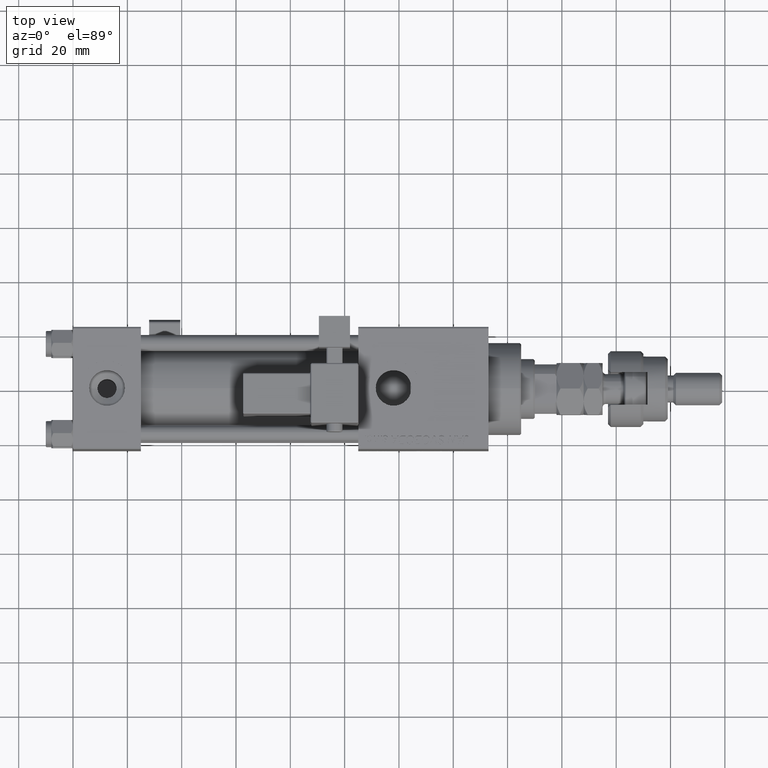
[diagram: clean part render]
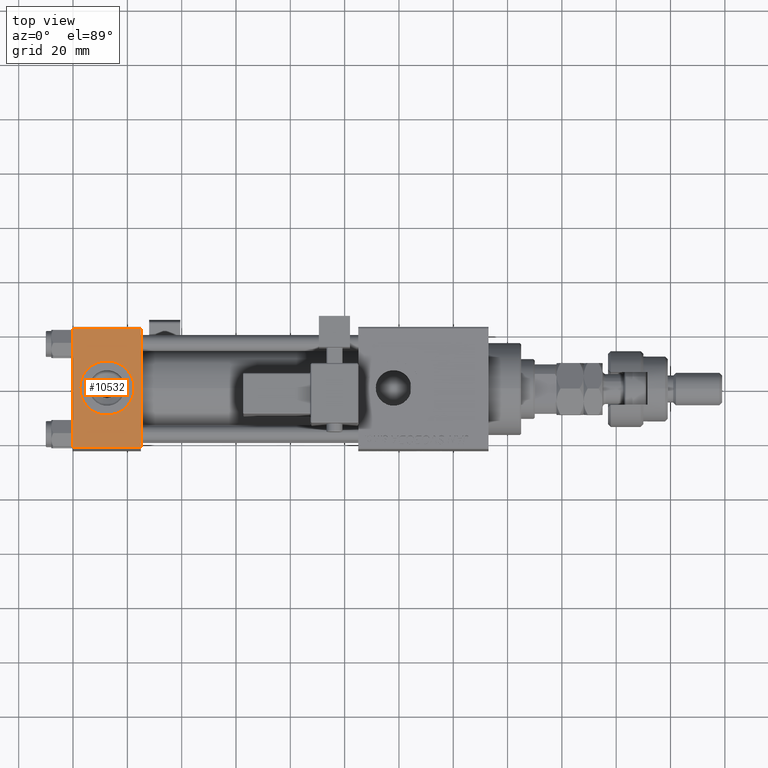
[diagram: same view with one face highlighted and labeled with its STEP entity id]
A machine part, top view. The second image highlights one B-rep face of the part: STEP entity #10532.
In plain terms, the highlighted planar face has unit normal (0, 0, -1).
Its self-contained STEP definition (entity closure, byte-faithful):
#235 = ORIENTED_EDGE ( 'NONE', *, *, #7508, .F. ) ;
#355 = VERTEX_POINT ( 'NONE', #46009 ) ;
#1140 = CARTESIAN_POINT ( 'NONE',  ( 0.000000000000000000, 22.50000000000000000, 22.50000000000000355 ) ) ;
#1927 = CARTESIAN_POINT ( 'NONE',  ( 0.000000000000000000, -21.99999999999997868, 22.50000000000000000 ) ) ;
#2071 = LINE ( 'NONE', #28501, #49501 ) ;
#2279 = DIRECTION ( 'NONE',  ( 0.000000000000000000, 0.000000000000000000, 1.000000000000000000 ) ) ;
#2912 = FACE_BOUND ( 'NONE', #56318, .T. ) ;
#3070 = AXIS2_PLACEMENT_3D ( 'NONE', #21724, #8092, #11597 ) ;
#5200 = LINE ( 'NONE', #22891, #26436 ) ;
#5809 = EDGE_CURVE ( 'NONE', #42469, #10529, #39207, .T. ) ;
#7209 = VECTOR ( 'NONE', #17699, 1000.000000000000000 ) ;
#7508 = EDGE_CURVE ( 'NONE', #355, #28321, #2071, .T. ) ;
#8092 = DIRECTION ( 'NONE',  ( 0.000000000000000000, 0.000000000000000000, 1.000000000000000000 ) ) ;
#9532 = ORIENTED_EDGE ( 'NONE', *, *, #55783, .F. ) ;
#10019 = DIRECTION ( 'NONE',  ( -1.000000000000000000, 0.000000000000000000, 0.000000000000000000 ) ) ;
#10529 = VERTEX_POINT ( 'NONE', #16818 ) ;
#10532 = ADVANCED_FACE ( 'NONE', ( #2912, #38620 ), #51962, .F. ) ;
#11597 = DIRECTION ( 'NONE',  ( 1.000000000000000000, 0.000000000000000000, 0.000000000000000000 ) ) ;
#11685 = VERTEX_POINT ( 'NONE', #33624 ) ;
#13811 = LINE ( 'NONE', #17869, #29957 ) ;
#16818 = CARTESIAN_POINT ( 'NONE',  ( 22.50000000000000000, -1.734723475976807094E-15, 22.50000000000000000 ) ) ;
#17530 = EDGE_CURVE ( 'NONE', #57227, #28321, #5200, .T. ) ;
#17699 = DIRECTION ( 'NONE',  ( 0.000000000000000000, -1.000000000000000000, -7.709882115452476934E-17 ) ) ;
#17869 = CARTESIAN_POINT ( 'NONE',  ( 0.000000000000000000, 21.99999999999999289, 22.50000000000000355 ) ) ;
#20595 = CARTESIAN_POINT ( 'NONE',  ( 25.00000000000000000, 22.50000000000000000, 22.50000000000000355 ) ) ;
#21705 = CARTESIAN_POINT ( 'NONE',  ( 25.00000000000000000, -21.99999999999997868, 22.50000000000000000 ) ) ;
#21724 = CARTESIAN_POINT ( 'NONE',  ( 12.50000000000000000, -1.734723475976807094E-15, 22.50000000000000000 ) ) ;
#22729 = AXIS2_PLACEMENT_3D ( 'NONE', #20595, #52541, #48478 ) ;
#22755 = ORIENTED_EDGE ( 'NONE', *, *, #17530, .T. ) ;
#22891 = CARTESIAN_POINT ( 'NONE',  ( 25.00000000000000000, -21.99999999999999289, 22.50000000000000000 ) ) ;
#23292 = EDGE_CURVE ( 'NONE', #11685, #57227, #40910, .T. ) ;
#23837 = DIRECTION ( 'NONE',  ( 0.000000000000000000, -1.000000000000000000, -7.709882115452476934E-17 ) ) ;
#26436 = VECTOR ( 'NONE', #40612, 1000.000000000000000 ) ;
#28321 = VERTEX_POINT ( 'NONE', #21705 ) ;
#28501 = CARTESIAN_POINT ( 'NONE',  ( 25.00000000000000000, 22.50000000000000000, 22.50000000000000355 ) ) ;
#29221 = AXIS2_PLACEMENT_3D ( 'NONE', #51332, #2279, #32763 ) ;
#29957 = VECTOR ( 'NONE', #10019, 1000.000000000000000 ) ;
#32123 = ORIENTED_EDGE ( 'NONE', *, *, #23292, .T. ) ;
#32763 = DIRECTION ( 'NONE',  ( 1.000000000000000000, 0.000000000000000000, 0.000000000000000000 ) ) ;
#33624 = CARTESIAN_POINT ( 'NONE',  ( 0.000000000000000000, 21.99999999999999289, 22.50000000000000355 ) ) ;
#33850 = ORIENTED_EDGE ( 'NONE', *, *, #51353, .T. ) ;
#37651 = ORIENTED_EDGE ( 'NONE', *, *, #5809, .F. ) ;
#38620 = FACE_OUTER_BOUND ( 'NONE', #56032, .T. ) ;
#39207 = CIRCLE ( 'NONE', #3070, 9.999999999999998224 ) ;
#40612 = DIRECTION ( 'NONE',  ( 1.000000000000000000, 0.000000000000000000, 0.000000000000000000 ) ) ;
#40910 = LINE ( 'NONE', #1140, #7209 ) ;
#42469 = VERTEX_POINT ( 'NONE', #48792 ) ;
#46009 = CARTESIAN_POINT ( 'NONE',  ( 25.00000000000000000, 21.99999999999999289, 22.50000000000000355 ) ) ;
#48478 = DIRECTION ( 'NONE',  ( 0.000000000000000000, 1.000000000000000000, 7.709882115452476934E-17 ) ) ;
#48792 = CARTESIAN_POINT ( 'NONE',  ( 2.500000000000003997, -5.100766768294543310E-16, 22.50000000000000000 ) ) ;
#49501 = VECTOR ( 'NONE', #23837, 1000.000000000000000 ) ;
#51332 = CARTESIAN_POINT ( 'NONE',  ( 12.50000000000000000, -1.734723475976807094E-15, 22.50000000000000000 ) ) ;
#51353 = EDGE_CURVE ( 'NONE', #355, #11685, #13811, .T. ) ;
#51962 = PLANE ( 'NONE',  #22729 ) ;
#52541 = DIRECTION ( 'NONE',  ( 0.000000000000000000, 7.709882115452476934E-17, -1.000000000000000000 ) ) ;
#54256 = CIRCLE ( 'NONE', #29221, 9.999999999999998224 ) ;
#55783 = EDGE_CURVE ( 'NONE', #10529, #42469, #54256, .T. ) ;
#56032 = EDGE_LOOP ( 'NONE', ( #32123, #22755, #235, #33850 ) ) ;
#56318 = EDGE_LOOP ( 'NONE', ( #9532, #37651 ) ) ;
#57227 = VERTEX_POINT ( 'NONE', #1927 ) ;